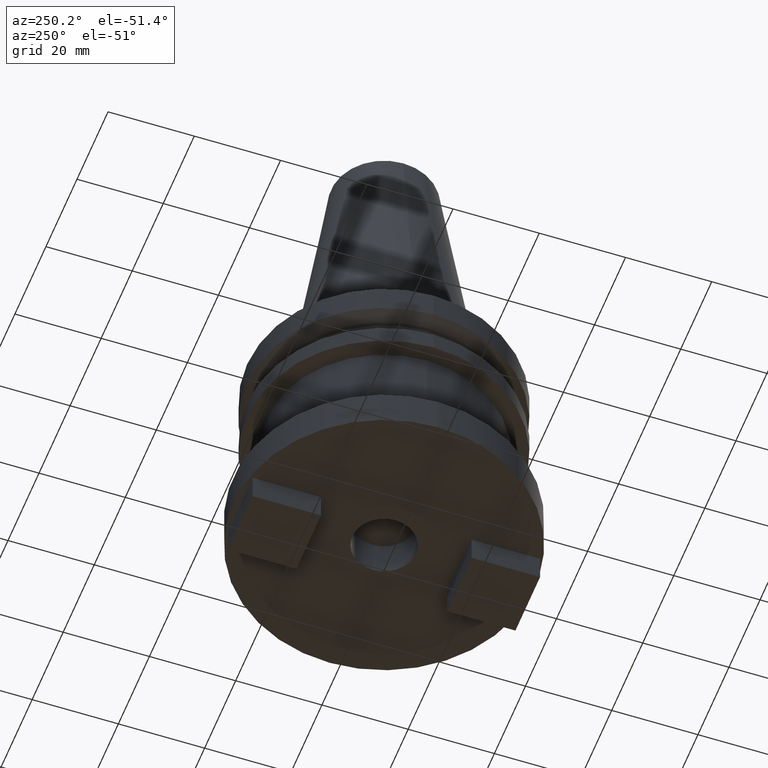
[diagram: clean part render]
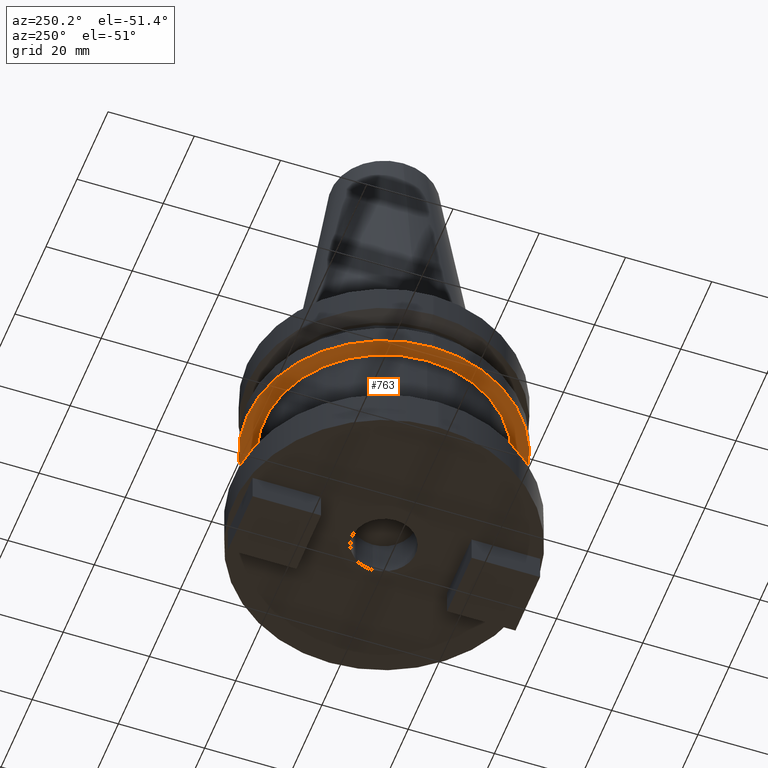
[diagram: same view with one face highlighted and labeled with its STEP entity id]
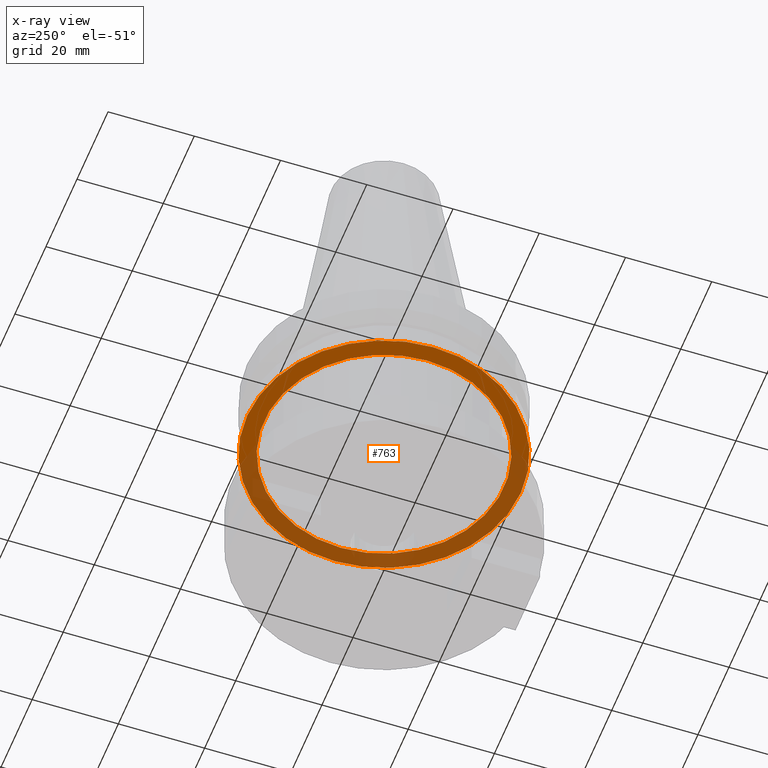
[diagram: x-ray of the same camera — body ghosted, the highlighted face saturated]
A machine part, auxiliary view. The second image highlights one B-rep face of the part: STEP entity #763.
The next image is the same camera in x-ray: the body ghosted, the highlighted face saturated — about 50% of this face is hidden behind the body in this view.
In plain terms, the highlighted planar face has unit normal (0, -0, 1).
Its self-contained STEP definition (entity closure, byte-faithful):
#21 = DIRECTION ( 'NONE',  ( -0.000000000000000000, -0.000000000000000000, 1.000000000000000000 ) ) ;
#27 = AXIS2_PLACEMENT_3D ( 'NONE', #665, #21, #86 ) ;
#53 = EDGE_CURVE ( 'NONE', #535, #819, #479, .T. ) ;
#54 = CIRCLE ( 'NONE', #432, 31.74999999999999289 ) ;
#80 = DIRECTION ( 'NONE',  ( -0.000000000000000000, -0.000000000000000000, 1.000000000000000000 ) ) ;
#86 = DIRECTION ( 'NONE',  ( 1.000000000000000000, 0.000000000000000000, 0.000000000000000000 ) ) ;
#89 = AXIS2_PLACEMENT_3D ( 'NONE', #325, #418, #254 ) ;
#179 = CARTESIAN_POINT ( 'NONE',  ( 27.80000000000000071, 0.000000000000000000, -19.04999999999999716 ) ) ;
#186 = AXIS2_PLACEMENT_3D ( 'NONE', #463, #623, #403 ) ;
#188 = CARTESIAN_POINT ( 'NONE',  ( 31.74999999999999289, 0.000000000000000000, -19.04999999999999716 ) ) ;
#237 = VERTEX_POINT ( 'NONE', #188 ) ;
#246 = CIRCLE ( 'NONE', #89, 27.80000000000000071 ) ;
#254 = DIRECTION ( 'NONE',  ( 1.000000000000000000, 0.000000000000000000, 0.000000000000000000 ) ) ;
#302 = ORIENTED_EDGE ( 'NONE', *, *, #919, .F. ) ;
#325 = CARTESIAN_POINT ( 'NONE',  ( 0.000000000000000000, 0.000000000000000000, -19.04999999999999716 ) ) ;
#403 = DIRECTION ( 'NONE',  ( 1.000000000000000000, 0.000000000000000000, 0.000000000000000000 ) ) ;
#418 = DIRECTION ( 'NONE',  ( -0.000000000000000000, -0.000000000000000000, 1.000000000000000000 ) ) ;
#432 = AXIS2_PLACEMENT_3D ( 'NONE', #964, #553, #620 ) ;
#446 = CARTESIAN_POINT ( 'NONE',  ( -31.74999999999999289, 3.888253587292845687E-15, -19.04999999999999716 ) ) ;
#463 = CARTESIAN_POINT ( 'NONE',  ( 0.000000000000000000, 31.74999999999999289, -19.04999999999999716 ) ) ;
#479 = CIRCLE ( 'NONE', #27, 27.80000000000000071 ) ;
#481 = FACE_OUTER_BOUND ( 'NONE', #951, .T. ) ;
#534 = CARTESIAN_POINT ( 'NONE',  ( -27.80000000000000071, 3.404518101629642167E-15, -19.04999999999999716 ) ) ;
#535 = VERTEX_POINT ( 'NONE', #534 ) ;
#553 = DIRECTION ( 'NONE',  ( -0.000000000000000000, -0.000000000000000000, 1.000000000000000000 ) ) ;
#561 = FACE_BOUND ( 'NONE', #636, .T. ) ;
#572 = ORIENTED_EDGE ( 'NONE', *, *, #671, .F. ) ;
#609 = VERTEX_POINT ( 'NONE', #446 ) ;
#610 = CIRCLE ( 'NONE', #887, 31.74999999999999289 ) ;
#620 = DIRECTION ( 'NONE',  ( 1.000000000000000000, 0.000000000000000000, 0.000000000000000000 ) ) ;
#623 = DIRECTION ( 'NONE',  ( 0.000000000000000000, -0.000000000000000000, 1.000000000000000000 ) ) ;
#636 = EDGE_LOOP ( 'NONE', ( #1004, #1080 ) ) ;
#665 = CARTESIAN_POINT ( 'NONE',  ( 0.000000000000000000, 0.000000000000000000, -19.04999999999999716 ) ) ;
#671 = EDGE_CURVE ( 'NONE', #237, #609, #610, .T. ) ;
#763 = ADVANCED_FACE ( 'NONE', ( #481, #561 ), #804, .F. ) ;
#804 = PLANE ( 'NONE',  #186 ) ;
#819 = VERTEX_POINT ( 'NONE', #179 ) ;
#887 = AXIS2_PLACEMENT_3D ( 'NONE', #984, #80, #976 ) ;
#919 = EDGE_CURVE ( 'NONE', #609, #237, #54, .T. ) ;
#951 = EDGE_LOOP ( 'NONE', ( #572, #302 ) ) ;
#964 = CARTESIAN_POINT ( 'NONE',  ( 0.000000000000000000, 0.000000000000000000, -19.04999999999999716 ) ) ;
#976 = DIRECTION ( 'NONE',  ( 1.000000000000000000, 0.000000000000000000, 0.000000000000000000 ) ) ;
#984 = CARTESIAN_POINT ( 'NONE',  ( 0.000000000000000000, 0.000000000000000000, -19.04999999999999716 ) ) ;
#1004 = ORIENTED_EDGE ( 'NONE', *, *, #1063, .T. ) ;
#1063 = EDGE_CURVE ( 'NONE', #819, #535, #246, .T. ) ;
#1080 = ORIENTED_EDGE ( 'NONE', *, *, #53, .T. ) ;